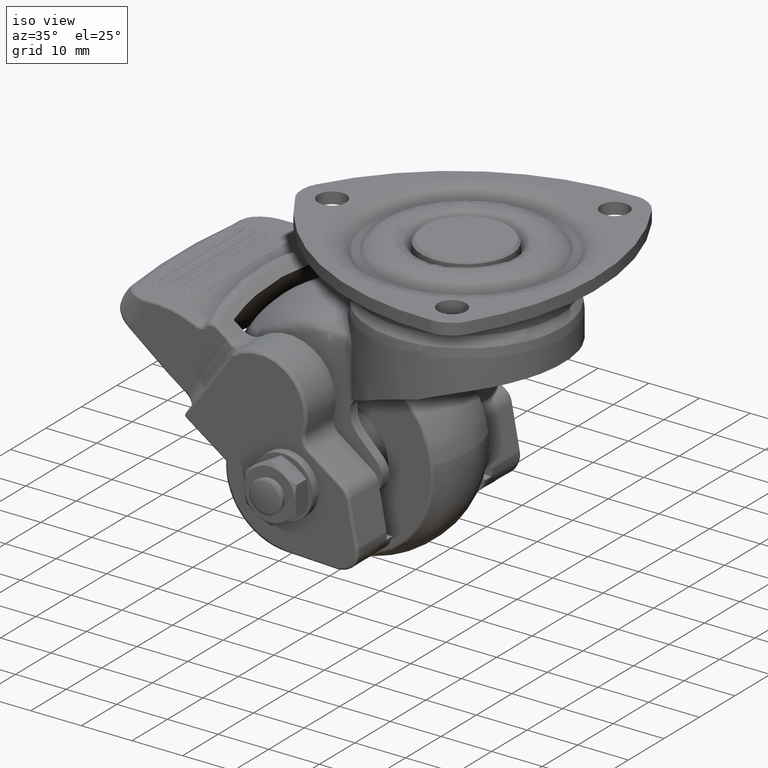
[diagram: clean part render]
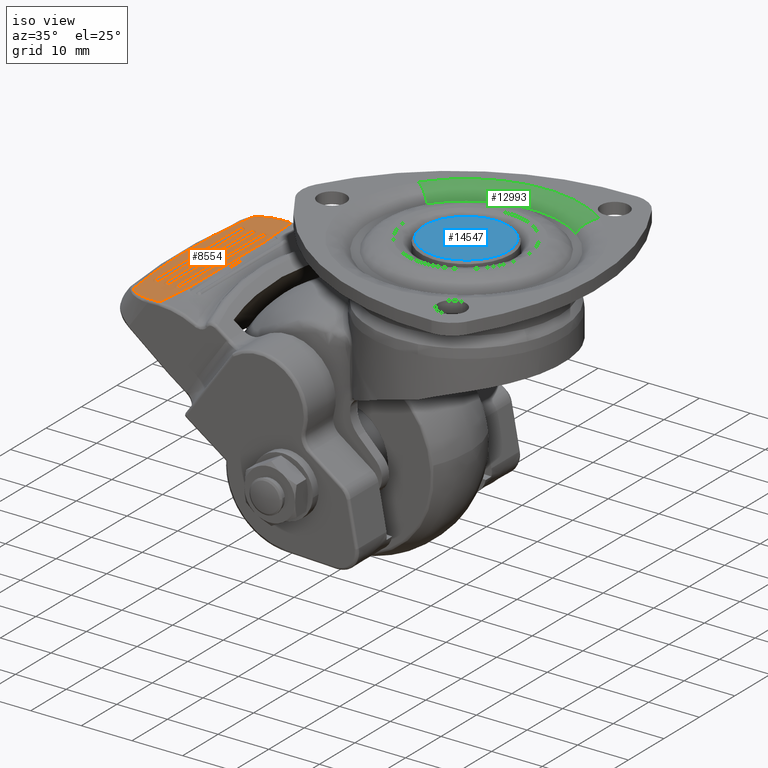
[diagram: same view with three faces highlighted in distinct colors, each labeled with its STEP entity id]
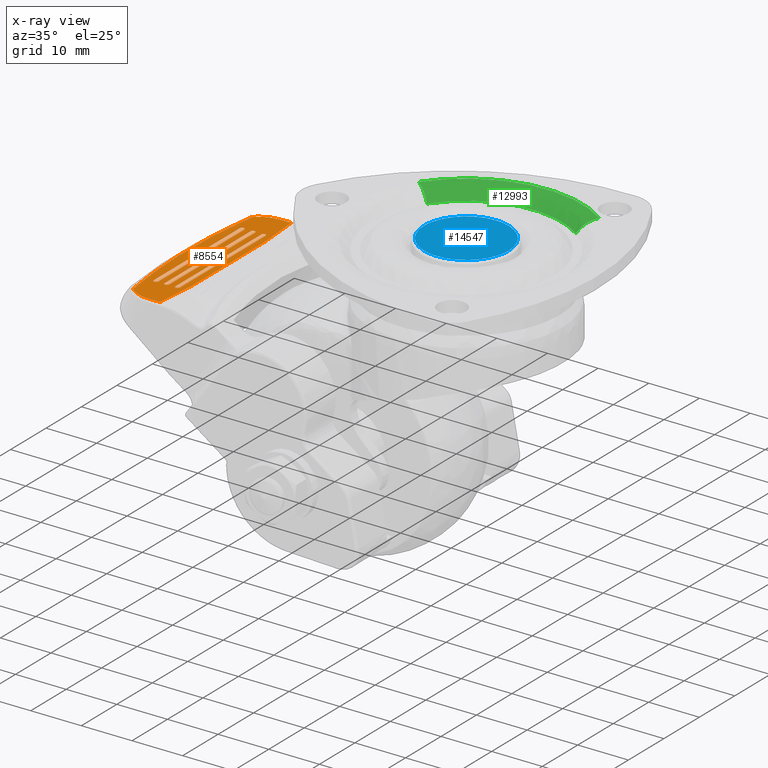
[diagram: x-ray of the same camera — body ghosted, the three highlighted faces saturated]
A machine part, iso view with three faces highlighted in distinct colors.
The next image is the same camera in x-ray (body ghosted, the three faces saturated) — at least one of them is partly hidden behind the body in this view.
Their STEP definitions:

[orange] entity #8554 — the highlighted face is a freeform B-spline surface patch.
#1691=CARTESIAN_POINT('',(-48.989470500004103,12.103014999999999,-17.035501101631901));
#1692=VERTEX_POINT('',#1691);
#1693=CARTESIAN_POINT('',(-48.048402430453002,12.103015000000021,-17.024625406688699));
#1694=VERTEX_POINT('',#1693);
#1695=CARTESIAN_POINT('',(-48.989470500004153,12.103015000000021,-17.035501101631908));
#1696=CARTESIAN_POINT('',(-48.989470500004160,12.374696092500820,-17.035501101631908));
#1697=CARTESIAN_POINT('',(-48.754203482616390,12.510536638751210,-17.032782177896099));
#1698=CARTESIAN_POINT('',(-48.518936465228620,12.646377185001626,-17.030063254160307));
#1699=CARTESIAN_POINT('',(-48.283669447840829,12.510536638751219,-17.027344330424501));
#1700=CARTESIAN_POINT('',(-48.048402430453045,12.374696092500830,-17.024625406688696));
#1701=CARTESIAN_POINT('',(-48.048402430453052,12.103015000000021,-17.024625406688699));
#1709=(BOUNDED_CURVE()B_SPLINE_CURVE(2,(#1695,#1696,#1697,#1698,#1699,#1700,#1701),.UNSPECIFIED.,.F.,.U.)B_SPLINE_CURVE_WITH_KNOTS((3,2,2,3),(0.0,0.333333333333333,0.666666666666667,1.0),.UNSPECIFIED.)CURVE()GEOMETRIC_REPRESENTATION_ITEM()RATIONAL_B_SPLINE_CURVE((1.0,0.866025403784446,1.0,0.866025403784446,1.0,0.866025403784446,1.0))REPRESENTATION_ITEM(''));
#1710=EDGE_CURVE('',#1692,#1694,#1709,.T.);
#1754=CARTESIAN_POINT('',(-51.127222887385201,12.103014999999999,-17.060206586369400));
#1755=VERTEX_POINT('',#1754);
#1756=CARTESIAN_POINT('',(-50.155037168538200,12.103015000000021,-17.048971272316798));
#1757=VERTEX_POINT('',#1756);
#1758=CARTESIAN_POINT('',(-51.127222887385187,12.103015000000021,-17.060206586369421));
#1759=CARTESIAN_POINT('',(-51.127222887385209,12.383679583950892,-17.060206586369421));
#1760=CARTESIAN_POINT('',(-50.884176457673462,12.524011875926339,-17.057397757856261));
#1761=CARTESIAN_POINT('',(-50.641130027961715,12.664344167901788,-17.054588929343101));
#1762=CARTESIAN_POINT('',(-50.398083598249968,12.524011875926350,-17.051780100829941));
#1763=CARTESIAN_POINT('',(-50.155037168538215,12.383679583950913,-17.048971272316784));
#1764=CARTESIAN_POINT('',(-50.155037168538207,12.103015000000021,-17.048971272316781));
#1772=(BOUNDED_CURVE()B_SPLINE_CURVE(2,(#1758,#1759,#1760,#1761,#1762,#1763,#1764),.UNSPECIFIED.,.F.,.U.)B_SPLINE_CURVE_WITH_KNOTS((3,2,2,3),(0.0,0.333333333333333,0.666666666666667,1.0),.UNSPECIFIED.)CURVE()GEOMETRIC_REPRESENTATION_ITEM()RATIONAL_B_SPLINE_CURVE((1.0,0.866025403784446,1.0,0.866025403784446,1.0,0.866025403784446,1.0))REPRESENTATION_ITEM(''));
#1773=EDGE_CURVE('',#1755,#1757,#1772,.T.);
#1961=CARTESIAN_POINT('',(-48.048402430453002,-12.103015999999959,-17.024625406688699));
#1962=VERTEX_POINT('',#1961);
#1963=CARTESIAN_POINT('',(-48.989470500004103,-12.103015999999959,-17.035501101631901));
#1964=VERTEX_POINT('',#1963);
#1965=CARTESIAN_POINT('',(-48.048402430453052,-12.103015999999959,-17.024625406688699));
#1966=CARTESIAN_POINT('',(-48.048402430453038,-12.573581455667162,-17.024625406688692));
#1967=CARTESIAN_POINT('',(-48.518936465228599,-12.573581455667160,-17.030063254160300));
#1968=CARTESIAN_POINT('',(-48.989470500004153,-12.573581455667162,-17.035501101631901));
#1969=CARTESIAN_POINT('',(-48.989470500004153,-12.103015999999959,-17.035501101631908));
#1977=(BOUNDED_CURVE()B_SPLINE_CURVE(2,(#1965,#1966,#1967,#1968,#1969),.UNSPECIFIED.,.F.,.U.)B_SPLINE_CURVE_WITH_KNOTS((3,2,3),(0.0,0.500000000000000,1.0),.UNSPECIFIED.)CURVE()GEOMETRIC_REPRESENTATION_ITEM()RATIONAL_B_SPLINE_CURVE((1.0,0.707106781186548,1.0,0.707106781186548,1.0))REPRESENTATION_ITEM(''));
#1978=EDGE_CURVE('',#1962,#1964,#1977,.T.);
#2022=CARTESIAN_POINT('',(-50.155037168538200,-12.103015999999959,-17.048971272316798));
#2023=VERTEX_POINT('',#2022);
#2024=CARTESIAN_POINT('',(-51.127222887385201,-12.103015999999959,-17.060206586369450));
#2025=VERTEX_POINT('',#2024);
#2026=CARTESIAN_POINT('',(-50.155037168538207,-12.103015999999959,-17.048971272316781));
#2027=CARTESIAN_POINT('',(-50.155037168538229,-12.589141319288075,-17.048971272316784));
#2028=CARTESIAN_POINT('',(-50.641130027961701,-12.589141319288069,-17.054588929343101));
#2029=CARTESIAN_POINT('',(-51.127222887385201,-12.589141319288075,-17.060206586369421));
#2030=CARTESIAN_POINT('',(-51.127222887385187,-12.103015999999959,-17.060206586369421));
#2038=(BOUNDED_CURVE()B_SPLINE_CURVE(2,(#2026,#2027,#2028,#2029,#2030),.UNSPECIFIED.,.F.,.U.)B_SPLINE_CURVE_WITH_KNOTS((3,2,3),(0.0,0.500000000000000,1.0),.UNSPECIFIED.)CURVE()GEOMETRIC_REPRESENTATION_ITEM()RATIONAL_B_SPLINE_CURVE((1.0,0.707106781186548,1.0,0.707106781186548,1.0))REPRESENTATION_ITEM(''));
#2039=EDGE_CURVE('',#2023,#2025,#2038,.T.);
#2157=CARTESIAN_POINT('',(-46.849860183445408,10.124693617010299,-17.010774145258448));
#2158=VERTEX_POINT('',#2157);
#2169=CARTESIAN_POINT('',(-46.849860183447397,-10.124693617003199,-17.010774145258448));
#2170=VERTEX_POINT('',#2169);
#2171=CARTESIAN_POINT('',(-46.849860183447397,-10.124693617003199,-17.010774145258448));
#2172=CARTESIAN_POINT('',(-46.849860183445408,10.124693617010299,-17.010774145258448));
#2173=QUASI_UNIFORM_CURVE('',1,(#2171,#2172),.UNSPECIFIED.,.F.,.U.);
#2174=EDGE_CURVE('',#2170,#2158,#2173,.T.);
#2240=CARTESIAN_POINT('',(-48.048402430453002,12.103015000000021,-17.024625406688699));
#2241=CARTESIAN_POINT('',(-48.048402430453002,-12.103015999999959,-17.024625406688699));
#2242=QUASI_UNIFORM_CURVE('',1,(#2240,#2241),.UNSPECIFIED.,.F.,.U.);
#2243=EDGE_CURVE('',#1694,#1962,#2242,.T.);
#2246=CARTESIAN_POINT('',(-48.989470500004103,-12.103015999999959,-17.035501101631901));
#2247=CARTESIAN_POINT('',(-48.989470500004103,12.103014999999999,-17.035501101631901));
#2248=QUASI_UNIFORM_CURVE('',1,(#2246,#2247),.UNSPECIFIED.,.F.,.U.);
#2249=EDGE_CURVE('',#1964,#1692,#2248,.T.);
#2269=CARTESIAN_POINT('',(-50.155037168538200,12.103015000000021,-17.048971272316798));
#2270=CARTESIAN_POINT('',(-50.155037168538200,-12.103015999999959,-17.048971272316798));
#2271=QUASI_UNIFORM_CURVE('',1,(#2269,#2270),.UNSPECIFIED.,.F.,.U.);
#2272=EDGE_CURVE('',#1757,#2023,#2271,.T.);
#2275=CARTESIAN_POINT('',(-51.127222887385201,-12.103015999999959,-17.060206586369450));
#2276=CARTESIAN_POINT('',(-51.127222887385201,12.103014999999999,-17.060206586369400));
#2277=QUASI_UNIFORM_CURVE('',1,(#2275,#2276),.UNSPECIFIED.,.F.,.U.);
#2278=EDGE_CURVE('',#2025,#1755,#2277,.T.);
#2308=CARTESIAN_POINT('',(-53.263290496628912,12.103014999999999,-17.084891961115801));
#2309=VERTEX_POINT('',#2308);
#2310=CARTESIAN_POINT('',(-52.263356687855001,12.103015000000021,-17.073335990576251));
#2311=VERTEX_POINT('',#2310);
#2312=CARTESIAN_POINT('',(-53.263290496628912,12.103014999999999,-17.084891961115801));
#2313=CARTESIAN_POINT('',(-53.263290519909390,12.603015302494825,-17.084892006008445));
#2314=CARTESIAN_POINT('',(-52.763323603882199,12.603015302494830,-17.079113998292350));
#2315=CARTESIAN_POINT('',(-52.263356687855030,12.603015302494825,-17.073335990576254));
#2316=CARTESIAN_POINT('',(-52.263356687855023,12.103015000000021,-17.073335990576251));
#2324=(BOUNDED_CURVE()B_SPLINE_CURVE(2,(#2312,#2313,#2314,#2315,#2316),.UNSPECIFIED.,.F.,.U.)B_SPLINE_CURVE_WITH_KNOTS((3,2,3),(0.0,0.500000000000000,1.0),.UNSPECIFIED.)CURVE()GEOMETRIC_REPRESENTATION_ITEM()RATIONAL_B_SPLINE_CURVE((1.0,0.707106781186548,1.0,0.707106781186548,1.0))REPRESENTATION_ITEM(''));
#2325=EDGE_CURVE('',#2309,#2311,#2324,.T.);
#2369=CARTESIAN_POINT('',(-52.263356681269499,-12.103015999999959,-17.073336002587698));
#2370=VERTEX_POINT('',#2369);
#2371=CARTESIAN_POINT('',(-53.263290496628912,-12.103015999999959,-17.084891961115801));
#2372=VERTEX_POINT('',#2371);
#2388=CARTESIAN_POINT('',(-52.263356681269499,-12.103015999999959,-17.073336002587698));
#2389=CARTESIAN_POINT('',(-52.263356712166704,-12.603016278697098,-17.073335946233655));
#2390=CARTESIAN_POINT('',(-52.763323604397797,-12.603016278697099,-17.079113953674749));
#2391=CARTESIAN_POINT('',(-53.263290496628905,-12.603016278697098,-17.084891961115837));
#2392=CARTESIAN_POINT('',(-53.263290496628912,-12.103015999999959,-17.084891961115840));
#2400=(BOUNDED_CURVE()B_SPLINE_CURVE(2,(#2388,#2389,#2390,#2391,#2392),.UNSPECIFIED.,.F.,.U.)B_SPLINE_CURVE_WITH_KNOTS((3,2,3),(0.0,0.500000000000000,1.0),.UNSPECIFIED.)CURVE()GEOMETRIC_REPRESENTATION_ITEM()RATIONAL_B_SPLINE_CURVE((1.0,0.707106781186548,1.0,0.707106781186548,1.0))REPRESENTATION_ITEM(''));
#2401=EDGE_CURVE('',#2370,#2372,#2400,.T.);
#2421=CARTESIAN_POINT('',(-53.263290496628912,-12.103015999999959,-17.084891961115801));
#2422=CARTESIAN_POINT('',(-53.263290496628912,12.103014999999999,-17.084891961115801));
#2423=QUASI_UNIFORM_CURVE('',1,(#2421,#2422),.UNSPECIFIED.,.F.,.U.);
#2424=EDGE_CURVE('',#2372,#2309,#2423,.T.);
#2427=CARTESIAN_POINT('',(-52.263356681269499,-12.103015999999959,-17.073336002587698));
#2428=CARTESIAN_POINT('',(-52.263356687855001,12.103015000000021,-17.073335990576251));
#2429=QUASI_UNIFORM_CURVE('',1,(#2427,#2428),.UNSPECIFIED.,.F.,.U.);
#2430=EDGE_CURVE('',#2370,#2311,#2429,.T.);
#3283=CARTESIAN_POINT('',(-47.513776527443703,-18.500000000000000,-17.018446865074100));
#3284=VERTEX_POINT('',#3283);
#3354=CARTESIAN_POINT('',(-49.645998310506101,-18.500000000000000,-17.043088433961799));
#3355=VERTEX_POINT('',#3354);
#3377=CARTESIAN_POINT('',(-47.513776527443703,-18.500000000000000,-17.018446865074100));
#3378=CARTESIAN_POINT('',(-49.645998310506101,-18.500000000000000,-17.043088433961799));
#3379=QUASI_UNIFORM_CURVE('',1,(#3377,#3378),.UNSPECIFIED.,.F.,.U.);
#3380=EDGE_CURVE('',#3284,#3355,#3379,.T.);
#3445=CARTESIAN_POINT('',(-54.073416239370196,-16.723709195922648,-17.094255026829948));
#3446=VERTEX_POINT('',#3445);
#3474=CARTESIAN_POINT('',(-49.645998310506101,-18.500000000000000,-17.043088433961799));
#3475=CARTESIAN_POINT('',(-52.404052398719543,-18.499999999999453,-17.074962594686497));
#3476=CARTESIAN_POINT('',(-54.073416239370196,-16.723709195922648,-17.094255026829948));
#3484=(BOUNDED_CURVE()B_SPLINE_CURVE(2,(#3474,#3475,#3476),.UNSPECIFIED.,.F.,.U.)CURVE()GEOMETRIC_REPRESENTATION_ITEM()QUASI_UNIFORM_CURVE()RATIONAL_B_SPLINE_CURVE((1.0,0.895898629925818,1.0))REPRESENTATION_ITEM(''));
#3485=EDGE_CURVE('',#3355,#3446,#3484,.T.);
#6048=CARTESIAN_POINT('',(-47.513776527443703,18.500000000000000,-17.018446865074100));
#6049=VERTEX_POINT('',#6048);
#6119=CARTESIAN_POINT('',(-49.645998310506101,18.500000000000000,-17.043088433961799));
#6120=VERTEX_POINT('',#6119);
#6136=CARTESIAN_POINT('',(-47.513776527443703,18.500000000000000,-17.018446865074100));
#6137=CARTESIAN_POINT('',(-49.645998310506101,18.500000000000000,-17.043088433961799));
#6138=QUASI_UNIFORM_CURVE('',1,(#6136,#6137),.UNSPECIFIED.,.F.,.U.);
#6139=EDGE_CURVE('',#6049,#6120,#6138,.T.);
#6210=CARTESIAN_POINT('',(-54.073416239370196,16.723709195922648,-17.094255026829948));
#6211=VERTEX_POINT('',#6210);
#6225=CARTESIAN_POINT('',(-49.645998310506101,18.500000000000000,-17.043088433961799));
#6226=CARTESIAN_POINT('',(-52.404052398719543,18.499999999999453,-17.074962594686497));
#6227=CARTESIAN_POINT('',(-54.073416239370196,16.723709195922648,-17.094255026829948));
#6235=(BOUNDED_CURVE()B_SPLINE_CURVE(2,(#6225,#6226,#6227),.UNSPECIFIED.,.F.,.U.)CURVE()GEOMETRIC_REPRESENTATION_ITEM()QUASI_UNIFORM_CURVE()RATIONAL_B_SPLINE_CURVE((1.0,0.895898629925818,1.0))REPRESENTATION_ITEM(''));
#6236=EDGE_CURVE('',#6120,#6211,#6235,.T.);
#6928=CARTESIAN_POINT('',(-54.073416239370196,16.723709195922648,-17.094255026829948));
#6929=CARTESIAN_POINT('',(-56.693333810110310,2.720046E-012,-17.124532777396194));
#6930=CARTESIAN_POINT('',(-54.073416239370196,-16.723709195922648,-17.094255026829948));
#6938=(BOUNDED_CURVE()B_SPLINE_CURVE(2,(#6928,#6929,#6930),.UNSPECIFIED.,.F.,.U.)CURVE()GEOMETRIC_REPRESENTATION_ITEM()QUASI_UNIFORM_CURVE()RATIONAL_B_SPLINE_CURVE((1.0,0.992062957032462,1.0))REPRESENTATION_ITEM(''));
#6939=EDGE_CURVE('',#6211,#3446,#6938,.T.);
#8497=CARTESIAN_POINT('',(-55.804143035707092,-20.348149928286819,-17.114256615748410));
#8498=CARTESIAN_POINT('',(-46.423872936190890,-20.348149928286819,-17.005851114182619));
#8499=CARTESIAN_POINT('',(-55.804143035707092,20.348150920704160,-17.114256615748410));
#8500=CARTESIAN_POINT('',(-46.423872936190890,20.348150920704160,-17.005851114182619));
#8501=B_SPLINE_SURFACE_WITH_KNOTS('',1,1,((#8497,#8499),(#8498,#8500)),.UNSPECIFIED.,.F.,.F.,.U.,(2,2),(2,2),(0.0,9.380896486618294),(0.0,40.696300848990980),.UNSPECIFIED.);
#8502=CARTESIAN_POINT('',(-47.513776527443703,-18.500000000000000,-17.018446865074100));
#8503=CARTESIAN_POINT('',(-47.499131395083793,-17.725991056728368,-17.018277614839079));
#8504=CARTESIAN_POINT('',(-47.469487182449832,-16.953090995164889,-17.017935023879009));
#8505=CARTESIAN_POINT('',(-47.383258647042453,-15.409282553847961,-17.016938501654060));
#8506=CARTESIAN_POINT('',(-47.326653460654079,-14.638375716541161,-17.016284329273461));
#8507=CARTESIAN_POINT('',(-47.190580533820189,-13.098252270097040,-17.014711767532010));
#8508=CARTESIAN_POINT('',(-47.111079776383313,-12.329038101905240,-17.013792996601818));
#8509=CARTESIAN_POINT('',(-46.968298367378203,-11.081642032411400,-17.012142906562481));
#8510=CARTESIAN_POINT('',(-46.910183386560789,-10.603069058482120,-17.011471285854640));
#8511=CARTESIAN_POINT('',(-46.849860183447397,-10.124693617003199,-17.010774145258448));
#8512=B_SPLINE_CURVE_WITH_KNOTS('',3,(#8502,#8503,#8504,#8505,#8506,#8507,#8508,#8509,#8510,#8511),.UNSPECIFIED.,.F.,.U.,(4,2,2,2,4),(0.0,0.062500000000000,0.125000000000000,0.187500000000000,0.226435736976719),.UNSPECIFIED.);
#8513=EDGE_CURVE('',#3284,#2170,#8512,.T.);
#8514=ORIENTED_EDGE('',*,*,#8513,.T.);
#8515=ORIENTED_EDGE('',*,*,#2174,.T.);
#8516=CARTESIAN_POINT('',(-46.849860183445408,10.124693617010299,-17.010774145258448));
#8517=CARTESIAN_POINT('',(-46.909557279062071,10.598098855925590,-17.011464050082481));
#8518=CARTESIAN_POINT('',(-46.967091945487262,11.071694252727420,-17.012128964237942));
#8519=CARTESIAN_POINT('',(-47.109620079170362,12.315340543650260,-17.013776127235939));
#8520=CARTESIAN_POINT('',(-47.189375886877592,13.085852022688670,-17.014697845720111));
#8521=CARTESIAN_POINT('',(-47.325923721893737,14.628894350446970,-17.016275895859980));
#8522=CARTESIAN_POINT('',(-47.382748883746487,15.401422285409090,-17.016932610443561));
#8523=CARTESIAN_POINT('',(-47.469321223034257,16.948859316440949,-17.017933105926382));
#8524=CARTESIAN_POINT('',(-47.499089341411903,17.723766571023610,-17.018277128835010));
#8525=CARTESIAN_POINT('',(-47.513776527443703,18.500000000000000,-17.018446865074100));
#8526=B_SPLINE_CURVE_WITH_KNOTS('',3,(#8516,#8517,#8518,#8519,#8520,#8521,#8522,#8523,#8524,#8525),.UNSPECIFIED.,.F.,.U.,(4,2,2,2,4),(0.774024159563221,0.812500000000000,0.875000000000000,0.937500000000000,1.0),.UNSPECIFIED.);
#8527=EDGE_CURVE('',#2158,#6049,#8526,.T.);
#8528=ORIENTED_EDGE('',*,*,#8527,.T.);
#8529=ORIENTED_EDGE('',*,*,#6139,.T.);
#8530=ORIENTED_EDGE('',*,*,#6236,.T.);
#8531=ORIENTED_EDGE('',*,*,#6939,.T.);
#8532=ORIENTED_EDGE('',*,*,#3485,.F.);
#8533=ORIENTED_EDGE('',*,*,#3380,.F.);
#8534=EDGE_LOOP('',(#8514,#8515,#8528,#8529,#8530,#8531,#8532,#8533));
#8535=FACE_OUTER_BOUND('',#8534,.T.);
#8536=ORIENTED_EDGE('',*,*,#2424,.T.);
#8537=ORIENTED_EDGE('',*,*,#2325,.T.);
#8538=ORIENTED_EDGE('',*,*,#2430,.F.);
#8539=ORIENTED_EDGE('',*,*,#2401,.T.);
#8540=EDGE_LOOP('',(#8536,#8537,#8538,#8539));
#8541=FACE_BOUND('',#8540,.T.);
#8542=ORIENTED_EDGE('',*,*,#2278,.T.);
#8543=ORIENTED_EDGE('',*,*,#1773,.T.);
#8544=ORIENTED_EDGE('',*,*,#2272,.T.);
#8545=ORIENTED_EDGE('',*,*,#2039,.T.);
#8546=EDGE_LOOP('',(#8542,#8543,#8544,#8545));
#8547=FACE_BOUND('',#8546,.T.);
#8548=ORIENTED_EDGE('',*,*,#2249,.T.);
#8549=ORIENTED_EDGE('',*,*,#1710,.T.);
#8550=ORIENTED_EDGE('',*,*,#2243,.T.);
#8551=ORIENTED_EDGE('',*,*,#1978,.T.);
#8552=EDGE_LOOP('',(#8548,#8549,#8550,#8551));
#8553=FACE_BOUND('',#8552,.T.);
#8554=ADVANCED_FACE('',(#8535,#8541,#8547,#8553),#8501,.T.);

[blue] entity #14547 — the highlighted face is a freeform B-spline surface patch.
#14231=CARTESIAN_POINT('',(-0.550284787492691,-8.331847733449223,-9.000000000043674));
#14232=VERTEX_POINT('',#14231);
#14238=CARTESIAN_POINT('',(-8.350000000000000,0.0,-9.0));
#14239=VERTEX_POINT('',#14238);
#14240=CARTESIAN_POINT('',(-8.350000000000000,0.0,-9.0));
#14241=CARTESIAN_POINT('',(-8.350000000000000,-7.816708142751604,-9.0));
#14242=CARTESIAN_POINT('',(-0.550284787492691,-8.331847733449223,-9.000000000043674));
#14250=(BOUNDED_CURVE()B_SPLINE_CURVE(2,(#14240,#14241,#14242),.UNSPECIFIED.,.F.,.U.)B_SPLINE_CURVE_WITH_KNOTS((3,3),(0.500000000000000,0.738494527059607),.UNSPECIFIED.)CURVE()GEOMETRIC_REPRESENTATION_ITEM()RATIONAL_B_SPLINE_CURVE((1.0,0.720586281200478,0.974281704153421))REPRESENTATION_ITEM(''));
#14251=EDGE_CURVE('',#14239,#14232,#14250,.T.);
#14253=CARTESIAN_POINT('',(0.072866571623156,8.349682057612860,-9.000000000028905));
#14254=VERTEX_POINT('',#14253);
#14255=CARTESIAN_POINT('',(0.072866571623156,8.349682057612860,-9.000000000028905));
#14256=CARTESIAN_POINT('',(0.036433979564353,8.350000000000001,-9.0));
#14257=CARTESIAN_POINT('',(0.0,8.350000000000000,-9.0));
#14258=CARTESIAN_POINT('',(-8.350000000000000,8.350000000000000,-9.0));
#14259=CARTESIAN_POINT('',(-8.350000000000000,0.0,-9.0));
#14267=(BOUNDED_CURVE()B_SPLINE_CURVE(2,(#14255,#14256,#14257,#14258,#14259),.UNSPECIFIED.,.F.,.U.)B_SPLINE_CURVE_WITH_KNOTS((3,2,3),(0.248460105656090,0.250000000000000,0.500000000000000),.UNSPECIFIED.)CURVE()GEOMETRIC_REPRESENTATION_ITEM()RATIONAL_B_SPLINE_CURVE((0.996414028079756,0.998195901555918,1.0,0.707106781186547,1.0))REPRESENTATION_ITEM(''));
#14268=EDGE_CURVE('',#14254,#14239,#14267,.T.);
#14378=CARTESIAN_POINT('',(8.350000000000000,0.0,-9.0));
#14379=VERTEX_POINT('',#14378);
#14380=CARTESIAN_POINT('',(8.350000000000000,0.0,-9.0));
#14381=CARTESIAN_POINT('',(8.350000000000000,8.277448608048749,-9.0));
#14382=CARTESIAN_POINT('',(0.072866571623156,8.349682057612860,-9.000000000028905));
#14390=(BOUNDED_CURVE()B_SPLINE_CURVE(2,(#14380,#14381,#14382),.UNSPECIFIED.,.F.,.U.)B_SPLINE_CURVE_WITH_KNOTS((3,3),(0.0,0.248460105656090),.UNSPECIFIED.)CURVE()GEOMETRIC_REPRESENTATION_ITEM()RATIONAL_B_SPLINE_CURVE((1.0,0.708910879630629,0.996414028079756))REPRESENTATION_ITEM(''));
#14391=EDGE_CURVE('',#14379,#14254,#14390,.T.);
#14393=CARTESIAN_POINT('',(-0.550284787492691,-8.331847733449223,-9.000000000043674));
#14394=CARTESIAN_POINT('',(-0.275441788687242,-8.350000000000000,-9.0));
#14395=CARTESIAN_POINT('',(0.0,-8.350000000000000,-9.0));
#14396=CARTESIAN_POINT('',(8.350000000000000,-8.350000000000000,-9.0));
#14397=CARTESIAN_POINT('',(8.350000000000000,0.0,-9.0));
#14405=(BOUNDED_CURVE()B_SPLINE_CURVE(2,(#14393,#14394,#14395,#14396,#14397),.UNSPECIFIED.,.F.,.U.)B_SPLINE_CURVE_WITH_KNOTS((3,2,3),(0.738494527059607,0.750000000000000,1.0),.UNSPECIFIED.)CURVE()GEOMETRIC_REPRESENTATION_ITEM()RATIONAL_B_SPLINE_CURVE((0.974281704153421,0.986520499986069,1.0,0.707106781186547,1.0))REPRESENTATION_ITEM(''));
#14406=EDGE_CURVE('',#14232,#14379,#14405,.T.);
#14536=CARTESIAN_POINT('',(-9.184165437935114,-9.183580754572885,-9.0));
#14537=CARTESIAN_POINT('',(9.184165437935112,-9.183580754572885,-9.0));
#14538=CARTESIAN_POINT('',(-9.184165437935114,9.183803524548548,-9.0));
#14539=CARTESIAN_POINT('',(9.184165437935112,9.183803524548548,-9.0));
#14540=B_SPLINE_SURFACE_WITH_KNOTS('',1,1,((#14536,#14538),(#14537,#14539)),.UNSPECIFIED.,.F.,.F.,.U.,(2,2),(2,2),(0.0,18.368330875870232),(0.0,18.367384279121431),.UNSPECIFIED.);
#14541=ORIENTED_EDGE('',*,*,#14391,.T.);
#14542=ORIENTED_EDGE('',*,*,#14268,.T.);
#14543=ORIENTED_EDGE('',*,*,#14251,.T.);
#14544=ORIENTED_EDGE('',*,*,#14406,.T.);
#14545=EDGE_LOOP('',(#14541,#14542,#14543,#14544));
#14546=FACE_OUTER_BOUND('',#14545,.T.);
#14547=ADVANCED_FACE('',(#14546),#14540,.T.);

[green] entity #12993 — the highlighted face is a freeform B-spline surface patch.
#12815=CARTESIAN_POINT('',(10.858366824583060,15.347177913767700,-2.068774999483792));
#12816=VERTEX_POINT('',#12815);
#12849=CARTESIAN_POINT('',(-15.347177913767700,10.858366824583060,-2.068774999483791));
#12850=VERTEX_POINT('',#12849);
#12864=CARTESIAN_POINT('',(-18.653898075415331,13.197922715742010,-1.032646E-015));
#12865=VERTEX_POINT('',#12864);
#12866=CARTESIAN_POINT('',(-15.347177913767693,10.858366824583060,-2.068774999483791));
#12867=CARTESIAN_POINT('',(-16.569276745828823,11.723020736087966,-1.317751E-010));
#12868=CARTESIAN_POINT('',(-18.653898075415327,13.197922715742013,-1.032646E-015));
#12876=(BOUNDED_CURVE()B_SPLINE_CURVE(2,(#12866,#12867,#12868),.UNSPECIFIED.,.F.,.U.)B_SPLINE_CURVE_WITH_KNOTS((3,3),(-1.607795408908162,-0.394741633598528),.UNSPECIFIED.)CURVE()GEOMETRIC_REPRESENTATION_ITEM()RATIONAL_B_SPLINE_CURVE((0.914274471577331,0.814042982482448,0.913856088113725))REPRESENTATION_ITEM(''));
#12877=EDGE_CURVE('',#12850,#12865,#12876,.T.);
#12911=CARTESIAN_POINT('',(13.197922715742010,18.653898075415331,-1.032646E-015));
#12912=VERTEX_POINT('',#12911);
#12926=CARTESIAN_POINT('',(10.858366824583060,15.347177913767698,-2.068774999483792));
#12927=CARTESIAN_POINT('',(11.723020736087964,16.569276745828819,-1.317760E-010));
#12928=CARTESIAN_POINT('',(13.197922715742015,18.653898075415331,-1.032646E-015));
#12936=(BOUNDED_CURVE()B_SPLINE_CURVE(2,(#12926,#12927,#12928),.UNSPECIFIED.,.F.,.U.)B_SPLINE_CURVE_WITH_KNOTS((3,3),(-1.607795408908163,-0.394741633598529),.UNSPECIFIED.)CURVE()GEOMETRIC_REPRESENTATION_ITEM()RATIONAL_B_SPLINE_CURVE((0.914274471577331,0.814042982482448,0.913856088113725))REPRESENTATION_ITEM(''));
#12937=EDGE_CURVE('',#12816,#12912,#12936,.T.);
#12942=CARTESIAN_POINT('',(-15.242494939353172,10.784301993672500,-2.254683323879792));
#12943=CARTESIAN_POINT('',(-4.458192945680672,26.026796933025675,-2.254683323879791));
#12944=CARTESIAN_POINT('',(10.784301993672500,15.242494939353172,-2.254683323879792));
#12945=CARTESIAN_POINT('',(-16.517865565289817,11.686646527076265,0.123446993187845));
#12946=CARTESIAN_POINT('',(-4.831219038213548,28.204512092366059,0.123446993187845));
#12947=CARTESIAN_POINT('',(11.686646527076265,16.517865565289817,0.123446993187845));
#12948=CARTESIAN_POINT('',(-18.838305248565035,13.328393655883490,-0.005105473753445));
#12949=CARTESIAN_POINT('',(-5.509911592681545,32.166698904448523,-0.005105473753445));
#12950=CARTESIAN_POINT('',(13.328393655883490,18.838305248565035,-0.005105473753445));
#12958=(BOUNDED_SURFACE()B_SPLINE_SURFACE(2,2,((#12942,#12945,#12948),(#12943,#12946,#12949),(#12944,#12947,#12950)),.UNSPECIFIED.,.F.,.F.,.U.)B_SPLINE_SURFACE_WITH_KNOTS((3,3),(3,3),(0.0,38.234503702839717),(0.0,5.292320298029902),.UNSPECIFIED.)GEOMETRIC_REPRESENTATION_ITEM()RATIONAL_B_SPLINE_SURFACE(((0.924786722429995,0.803551632562168,0.924326537121761),(0.653922962581531,0.568196808418230,0.653597562429477),(0.924786722429995,0.803551632562168,0.924326537121761)))REPRESENTATION_ITEM('')SURFACE());
#12959=CARTESIAN_POINT('',(-15.347177913767696,10.858366824583060,-2.068774999483791));
#12960=CARTESIAN_POINT('',(-9.728349051755121,18.800000000000001,-2.068775000000001));
#12961=CARTESIAN_POINT('',(0.0,18.800000000000001,-2.068775000000000));
#12962=CARTESIAN_POINT('',(5.978160093232302,18.800000000000004,-2.068775000000001));
#12963=CARTESIAN_POINT('',(10.858366824583060,15.347177913767700,-2.068774999483792));
#12971=(BOUNDED_CURVE()B_SPLINE_CURVE(2,(#12959,#12960,#12961,#12962,#12963),.UNSPECIFIED.,.F.,.U.)B_SPLINE_CURVE_WITH_KNOTS((3,2,3),(0.099340826588856,0.250000000000000,0.349340826588857),.UNSPECIFIED.)CURVE()GEOMETRIC_REPRESENTATION_ITEM()RATIONAL_B_SPLINE_CURVE((0.859724235322136,0.823491799023344,1.0,0.883614982163203,0.859724235322136))REPRESENTATION_ITEM(''));
#12972=EDGE_CURVE('',#12850,#12816,#12971,.T.);
#12973=ORIENTED_EDGE('',*,*,#12972,.T.);
#12974=ORIENTED_EDGE('',*,*,#12937,.T.);
#12975=CARTESIAN_POINT('',(-18.653898075415324,13.197922715742010,-1.032646E-015));
#12976=CARTESIAN_POINT('',(-11.824430046893260,22.850669080457546,0.0));
#12977=CARTESIAN_POINT('',(0.0,22.850669080457550,0.0));
#12978=CARTESIAN_POINT('',(7.266221170201789,22.850669080457546,0.0));
#12979=CARTESIAN_POINT('',(13.197922715742010,18.653898075415324,-1.032646E-015));
#12987=(BOUNDED_CURVE()B_SPLINE_CURVE(2,(#12975,#12976,#12977,#12978,#12979),.UNSPECIFIED.,.F.,.U.)B_SPLINE_CURVE_WITH_KNOTS((3,2,3),(0.099340826588436,0.250000000000000,0.349340826588436),.UNSPECIFIED.)CURVE()GEOMETRIC_REPRESENTATION_ITEM()RATIONAL_B_SPLINE_CURVE((0.859724235322338,0.823491799022851,1.0,0.883614982163696,0.859724235322338))REPRESENTATION_ITEM(''));
#12988=EDGE_CURVE('',#12865,#12912,#12987,.T.);
#12989=ORIENTED_EDGE('',*,*,#12988,.F.);
#12990=ORIENTED_EDGE('',*,*,#12877,.F.);
#12991=EDGE_LOOP('',(#12973,#12974,#12989,#12990));
#12992=FACE_OUTER_BOUND('',#12991,.T.);
#12993=ADVANCED_FACE('',(#12992),#12958,.T.);